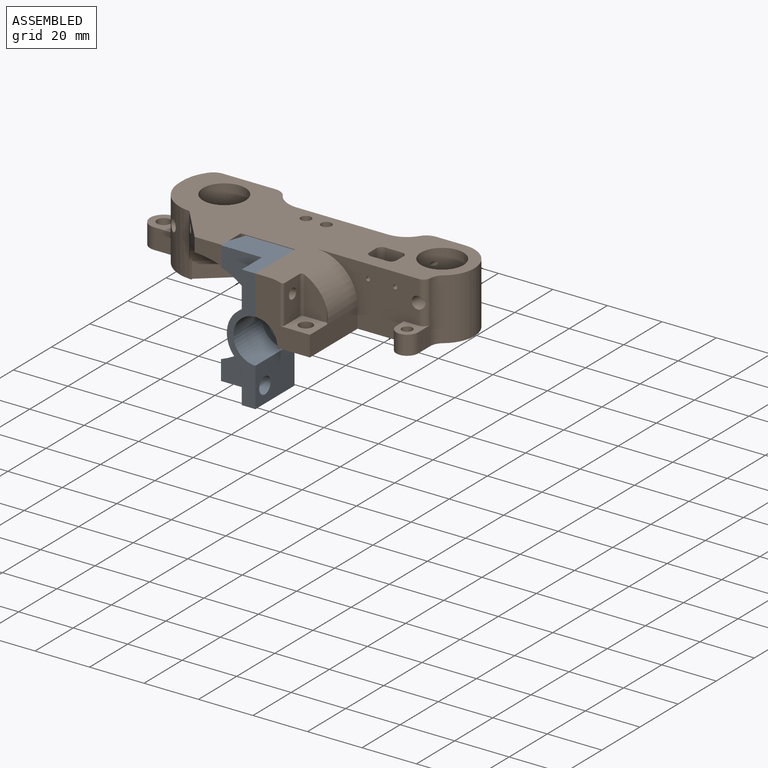
[diagram: assembled view]
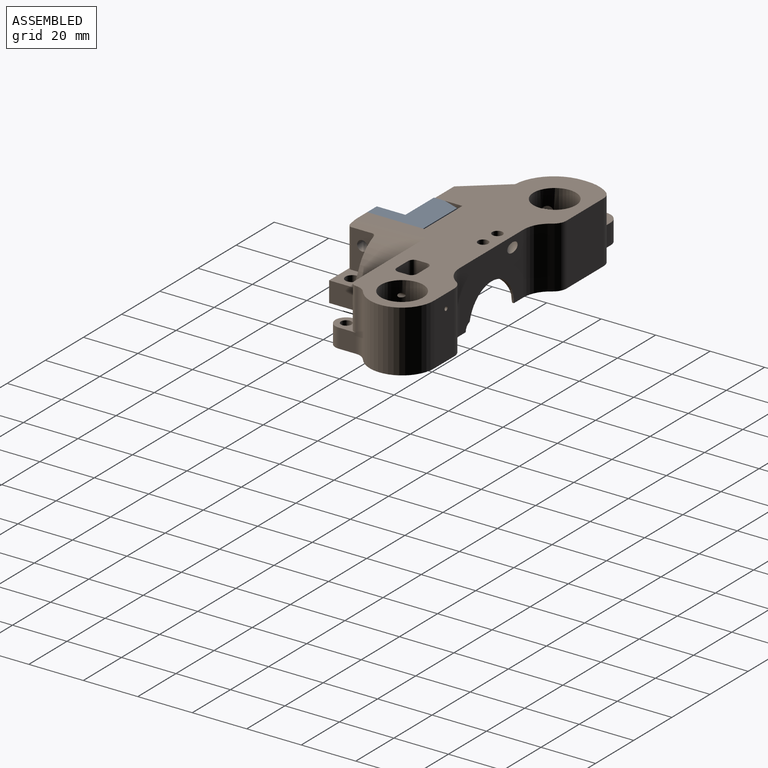
[diagram: assembled view, second angle]
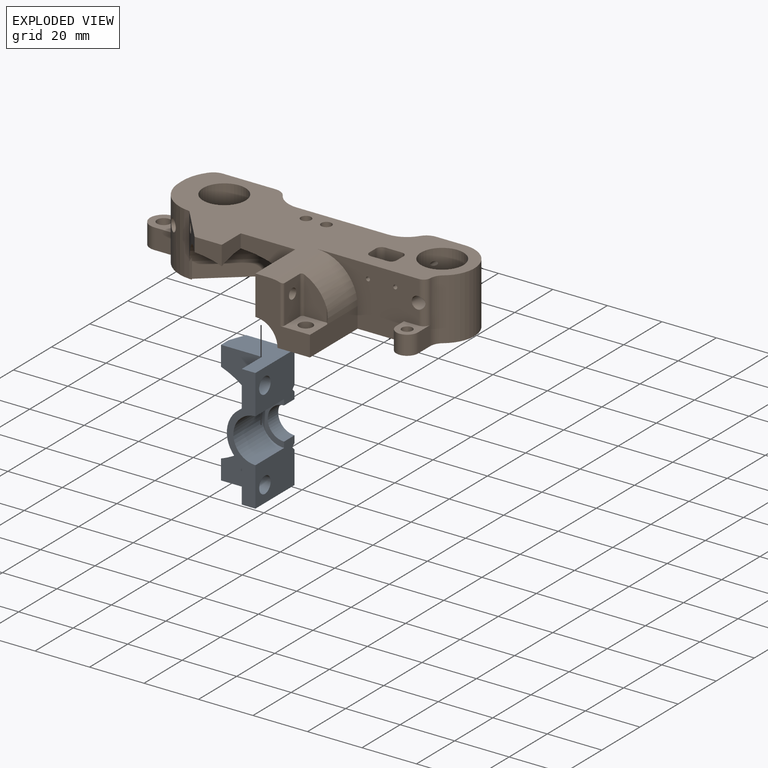
[diagram: exploded view]
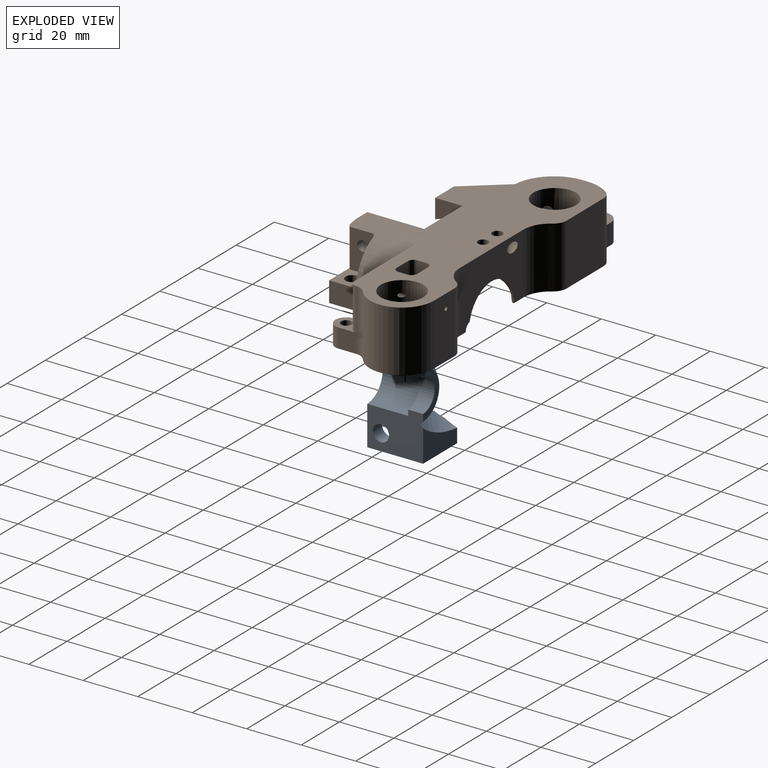
[diagram: exploded view, second angle]
ASSEMBLY  parts=2 mates=3
PART A: 25 faces, bbox 45.1x29.3x25.6 mm
  f0: plane 45x10.5mm, normal (0,1,0), area 194.2mm2, adj f3,f5,f6,f11,f12,f13,f15,f16
  f1: plane 17x8.5mm, normal (0,-1,0), area 56.9mm2, adj f4,f6,f16,f20
  f2: plane 16.2x8.1mm, normal (0,1,0), area 46.5mm2, adj f3,f6,f16,f20
  f3: cylinder r=8.1mm len=16.2mm, axis (0,1,0), area 381.7mm2, adj f0,f2,f6,f16
  f4: cone r=10.5mm half-angle=45deg, axis (0,1,0), area 82mm2, adj f1,f5,f6,f7,f16,f19
  f5: cylinder r=10.5mm len=20.66mm, axis (0,1,0), area 411.3mm2, adj f0,f4,f7,f10,f11,f12,f18,f19
  f6: plane 20.52x16.52mm, normal (0,0,1), area 277.2mm2, adj f0,f1,f2,f3,f4,f7,f14,f15
  f7: cylinder r=17.5mm len=25.57mm, axis (0,0.64,-0.77), area 195.5mm2, adj f4,f5,f6,f10,f14,f17,f24
  f8: plane 17.82x11.74mm, normal (0,-1,0), area 132.7mm2, adj f13,f16,f19,f23
  f9: plane 7.32x4.05mm, normal (0,0,-1), area 26.1mm2, adj f13,f18,f19,f23
  f10: plane 15.91x15mm, normal (0,1,0), area 171.1mm2, adj f5,f7,f11,f15,f17
  f11: plane 13.27x10.5mm, normal (0,0,-1), area 111mm2, adj f0,f5,f10,f15,f22
  f12: plane 13.27x10.5mm, normal (0,0,-1), area 111mm2, adj f0,f5,f13,f18,f21
  f13: plane 20.5x20mm, normal (-1,0,0), area 245.9mm2, adj f0,f8,f9,f12,f16,f18,f23
  f14: plane 17.82x11.74mm, normal (0,-1,0), area 132.7mm2, adj f6,f7,f15,f24
  f15: plane 20.5x20mm, normal (1,0,0), area 245.9mm2, adj f0,f6,f10,f11,f14,f17,f24
  f16: plane 20.52x16.52mm, normal (0,0,1), area 277.2mm2, adj f0,f1,f2,f3,f4,f8,f13,f19
  f17: plane 7.32x4.05mm, normal (0,0,-1), area 26.1mm2, adj f7,f10,f15,f24
  f18: plane 15.91x15mm, normal (0,1,0), area 171.1mm2, adj f5,f9,f12,f13,f19
  f19: cylinder r=17.5mm len=25.57mm, axis (0,0.64,-0.77), area 195.5mm2, adj f4,f5,f8,f9,f16,f18,f23
  f20: cylinder r=6mm len=12mm, axis (0,1,0), area 103.7mm2, adj f1,f2,f6,f16
  f21: cylinder r=3mm len=6mm, axis (0,0,1), area 94.2mm2, adj f12,f16
  f22: cylinder r=3mm len=6mm, axis (0,0,1), area 94.2mm2, adj f6,f11
  f23: plane 6.06x5.96mm, normal (0,-0.34,-0.94), area 35mm2, adj f8,f9,f13,f19
  f24: plane 6.06x5.96mm, normal (0,-0.34,-0.94), area 35mm2, adj f7,f14,f15,f17
PART B: 80 faces, bbox 119.1x52.7x22.6 mm
  f0: torus R=12.5mm, axis (-0.77,0.64,0), area 184.9mm2, adj f1,f19,f43,f44,f74,f79
  f1: cylinder r=11.75mm len=27.2mm, axis (0,-1,0), area 425.6mm2, adj f0,f10,f20,f40,f42,f43,f49,f71
  f2: cylinder r=5mm len=22.5mm, axis (0,0,-1), area 113.4mm2, adj f15,f27,f46,f66
  f3: plane 37.5x22.5mm, normal (0,1,0), area 502.8mm2, adj f17,f26,f45,f46,f51,f63,f65,f66
  f4: cylinder r=2mm len=22.5mm, axis (0,0,1), area 70.7mm2, adj f6,f38,f46,f66
  f5: cylinder r=2mm len=22.5mm, axis (0,0,1), area 70.7mm2, adj f6,f35,f46,f66
  f6: plane 22.5x6mm, normal (0,-1,0), area 133.2mm2, adj f4,f5,f45,f46,f66
  f7: cylinder r=15mm len=22.5mm, axis (0,0,-1), area 459.5mm2, adj f12,f21,f46,f48,f52,f69,f79
  f8: cylinder r=7.8mm len=22.5mm, axis (0,0,-1), area 1086.6mm2, adj f46,f69,f79
  f9: cylinder r=15mm len=22.5mm, axis (0,0,-1), area 185.3mm2, adj f22,f32,f46,f48,f52,f79
  f10: plane 33.47x22.5mm, normal (0,-1,0), area 517.7mm2, adj f1,f14,f15,f20,f46,f61,f66,f79
  f11: plane 22.5x20mm, normal (0,1,0), area 232.8mm2, adj f17,f18,f46,f49,f51,f55,f60,f66
  f12: plane 22.5x14.13mm, normal (-0.77,0.64,0), area 135.6mm2, adj f7,f34,f44,f46,f50,f61,f79
  f13: cylinder r=6mm len=6mm, axis (0,1,0), area 52.4mm2, adj f40,f41,f49,f66,f71
  f14: cylinder r=10mm len=22.5mm, axis (0,0,-1), area 226.9mm2, adj f10,f31,f46,f79
  f15: cylinder r=10mm len=22.5mm, axis (0,0,-1), area 224.4mm2, adj f2,f10,f46,f64,f66
  f16: cylinder r=7.8mm len=22.5mm, axis (0,0,-1), area 1080.1mm2, adj f46,f47,f63,f66,f68
  f17: plane 25x7.5mm, normal (1,0,0), area 187.5mm2, adj f3,f11,f51,f55,f66
  f18: cylinder r=8.1mm len=15mm, axis (0,-1,0), area 190.9mm2, adj f11,f41,f49,f66
  f19: plane 20.89x17.53mm, normal (0.64,0.77,0), area 155.4mm2, adj f0,f33,f44,f79
  f20: cylinder r=2.75mm len=24.7mm, axis (0,-1,0), area 89.3mm2, adj f1,f10,f40,f66
  f21: plane 7.5x7mm, normal (0,1,0), area 52.5mm2, adj f7,f23,f52,f79
  f22: plane 7.5x7mm, normal (0,-1,0), area 52.5mm2, adj f9,f23,f52,f79
  f23: cylinder r=5mm len=10mm, axis (0,0,1), area 117.8mm2, adj f21,f22,f52,f79
  f24: plane 7x6.3mm, normal (1,0,0), area 44.1mm2, adj f25,f29,f65,f66
  f25: cylinder r=4mm len=8mm, axis (0,0,-1), area 88mm2, adj f24,f26,f65,f66
  f26: plane 7x4mm, normal (-1,0,0), area 28mm2, adj f3,f25,f65,f66
  f27: plane 22.5x10.58mm, normal (0,-1,0), area 236.2mm2, adj f2,f28,f46,f47,f66
  f28: cylinder r=11.8mm len=22.5mm, axis (0,0,-1), area 664.8mm2, adj f27,f29,f46,f66
  f29: cylinder r=5mm len=22.5mm, axis (0,0,-1), area 102.9mm2, adj f24,f28,f46,f65,f66,f70
  f30: plane 22.5x19.38mm, normal (0,-1,0), area 436mm2, adj f31,f32,f46,f79
  f31: cylinder r=5mm len=22.5mm, axis (0,0,-1), area 113.4mm2, adj f14,f30,f46,f79
  f32: cylinder r=5mm len=22.5mm, axis (0,0,-1), area 104.3mm2, adj f9,f30,f46,f79
  f33: plane 7.38x0.47mm, normal (0.74,-0.67,0), area 4.2mm2, adj f19,f34,f44,f79
  f34: plane 7.42x1.03mm, normal (0,1,0), area 6.5mm2, adj f12,f33,f44,f79
  f35: plane 22.5x3.5mm, normal (1,0,0), area 78.7mm2, adj f5,f36,f46,f66
  f36: cylinder r=2mm len=22.5mm, axis (0,0,1), area 70.7mm2, adj f35,f39,f46,f66
  f37: cylinder r=2mm len=22.5mm, axis (0,0,1), area 70.7mm2, adj f38,f39,f46,f66
  f38: plane 22.5x3.5mm, normal (-1,0,0), area 78.7mm2, adj f4,f37,f46,f66
  f39: plane 22.5x6mm, normal (0,1,0), area 133.2mm2, adj f36,f37,f46,f64,f66
  f40: plane 11.48x11mm, normal (0,-1,0), area 69.1mm2, adj f1,f13,f20,f66,f71
  f41: plane 8.1x8.1mm, normal (0,1,0), area 23.3mm2, adj f13,f18,f49,f66
  f42: cylinder r=12.5mm len=21.91mm, axis (-0.77,0.64,0), area 152.4mm2, adj f1,f43,f72,f79
  f43: torus R=17.5mm, axis (0.77,-0.64,0), area 147.8mm2, adj f0,f1,f42,f79
  f44: cylinder r=17.5mm len=36.24mm, axis (-0.77,0.64,0), area 666.1mm2, adj f0,f12,f19,f33,f34,f50,f73,f74
  f45: cylinder r=0.75mm len=5mm, axis (0,1,0), area 23.6mm2, adj f3,f6
  f46: plane 107.6x52.6mm, normal (0,0,-1), area 2438mm2, adj f2,f3,f4,f5,f6,f7,f8,f9
  f47: cylinder r=0.75mm len=8.26mm, axis (0,1,0), area 33.7mm2, adj f16,f27
  f48: plane 15x1.6mm, normal (-1,0,0), area 24mm2, adj f7,f9,f46,f52
  f49: plane 20.9x16.5mm, normal (-1,0,0), area 287.6mm2, adj f1,f11,f13,f18,f41,f46,f62,f71
  f50: plane 9.95x7.09mm, normal (0,1,0), area 58.4mm2, adj f12,f44,f46,f73
  f51: cylinder r=15mm len=25mm, axis (0,1,0), area 406.6mm2, adj f3,f11,f17,f46,f56,f57,f58,f59
  f52: plane 12x10mm, normal (0,0,-1), area 85.3mm2, adj f7,f9,f21,f22,f23,f48,f53
  f53: cylinder r=2.5mm len=7.5mm, axis (0,0,-1), area 117.8mm2, adj f52,f79
  f54: cylinder r=2.5mm len=7.5mm, axis (0,0,-1), area 117.8mm2, adj f55,f66
  f55: plane 11x10mm, normal (0,0,-1), area 80.2mm2, adj f11,f17,f54,f56,f57,f58,f59,f60
  f56: cylinder r=1mm len=14.14mm, axis (0,0,-1), area 22mm2, adj f51,f55,f57,f59
  f57: plane 14.14x8mm, normal (1,0,0), area 101.8mm2, adj f51,f55,f56,f60,f62
  f58: cylinder r=1mm len=5.39mm, axis (0,0,-1), area 4.2mm2, adj f51,f55,f59
  f59: plane 13.75x8mm, normal (0,1,0), area 85.6mm2, adj f51,f55,f56,f58
  f60: cylinder r=1mm len=14.46mm, axis (0,0,1), area 22.5mm2, adj f11,f51,f55,f57
  f61: cylinder r=1.75mm len=32.07mm, axis (-0.77,0.64,0), area 404.8mm2, adj f10,f12
  f62: cylinder r=1.9mm len=10mm, axis (-1,0,0), area 119.4mm2, adj f49,f57
  f63: cylinder r=0.75mm len=12.26mm, axis (0,1,0), area 52.6mm2, adj f3,f16
  f64: cylinder r=0.75mm len=11.86mm, axis (0,1,0), area 52.1mm2, adj f15,f39
  f65: plane 10.43x8mm, normal (0,0,-1), area 46.5mm2, adj f3,f24,f25,f26,f29,f67,f70
  f66: plane 52.6x45.8mm, normal (0,0,1), area 950.5mm2, adj f2,f3,f4,f5,f6,f10,f11,f13
  f67: cylinder r=1.95mm len=7mm, axis (0,0,1), area 85.8mm2, adj f65,f66
  f68: cylinder r=2.25mm len=9.33mm, axis (0,1,0), area 117.3mm2, adj f3,f16,f70
  f69: cylinder r=2.25mm len=9.66mm, axis (0.64,-0.77,0), area 118.9mm2, adj f7,f8
  f70: cylinder r=2.5mm len=15.5mm, axis (0,0,-1), area 53.2mm2, adj f3,f29,f46,f65,f68
  f71: plane 6.36x2.56mm, normal (-0.71,-0.71,0), area 20.6mm2, adj f1,f13,f40,f49
  f72: plane 9.69x8.13mm, normal (-0.77,0.64,0), area 8.6mm2, adj f1,f42
  f73: plane 10x7.09mm, normal (1,0,0), area 57.4mm2, adj f44,f46,f50,f74
  f74: plane 20x10.96mm, normal (0,1,0), area 142.4mm2, adj f0,f1,f44,f46,f49,f73
  f75: cylinder r=1.9mm len=10mm, axis (0,0,-1), area 119.4mm2, adj f46,f76
  f76: plane 3.8x3.8mm, normal (0,0,-1), area 11.3mm2, adj f75
  f77: cylinder r=1.9mm len=10mm, axis (0,0,-1), area 119.4mm2, adj f46,f78
  f78: plane 3.8x3.8mm, normal (0,0,-1), area 11.3mm2, adj f77
  f79: plane 55.45x27.6mm, normal (0,0,1), area 611.6mm2, adj f0,f1,f7,f8,f9,f10,f12,f14
PLACE A rot(axis=(0.71,0,0.71),180deg) t=(-6.25,22.32,3.16)mm
PLACE B rot(axis=(1,0,0),180deg) t=(-1.25,58.12,25.66)mm
MATE planar A.f16 <-> B.f49  axis (1,0,0) through (-1.25,28.37,-11.7)mm
MATE planar A.f15 <-> B.f46  axis (0,0,1) through (-9.4,30.55,25.66)mm
MATE planar A.f0 <-> B.f11  axis (0,-1,0) through (-5.02,17.32,3.16)mm
